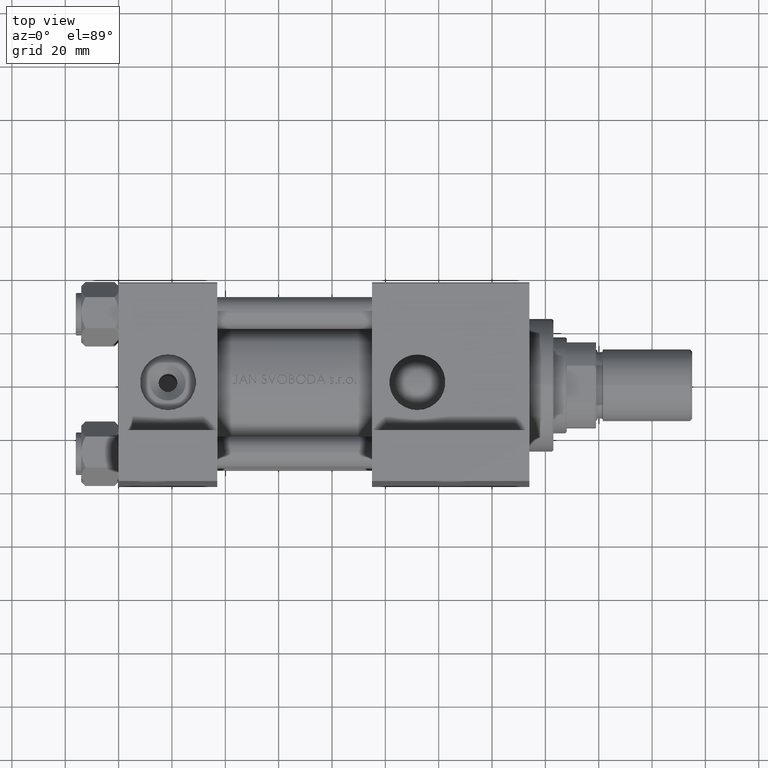
[diagram: clean part render]
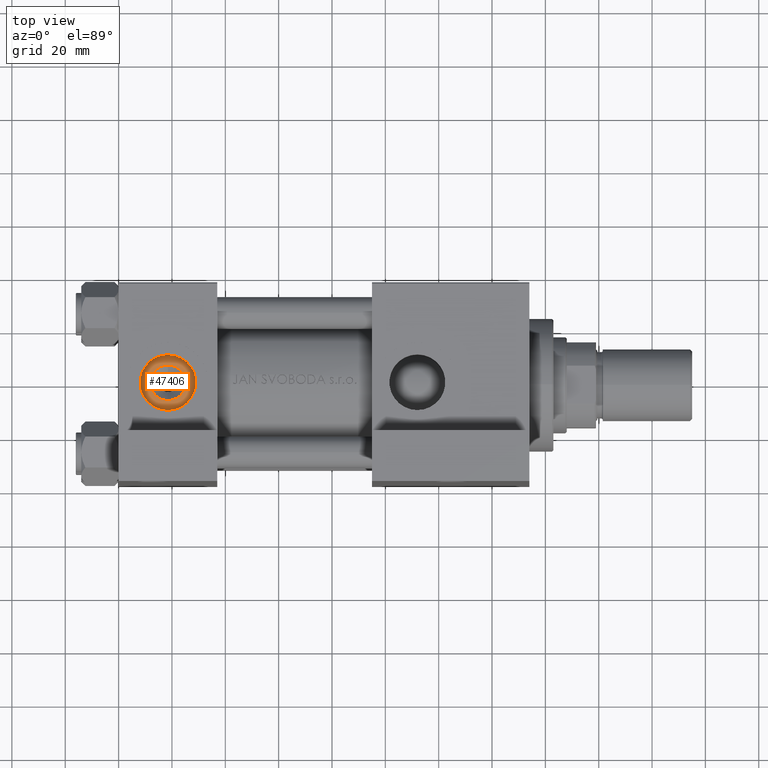
[diagram: same view with one face highlighted and labeled with its STEP entity id]
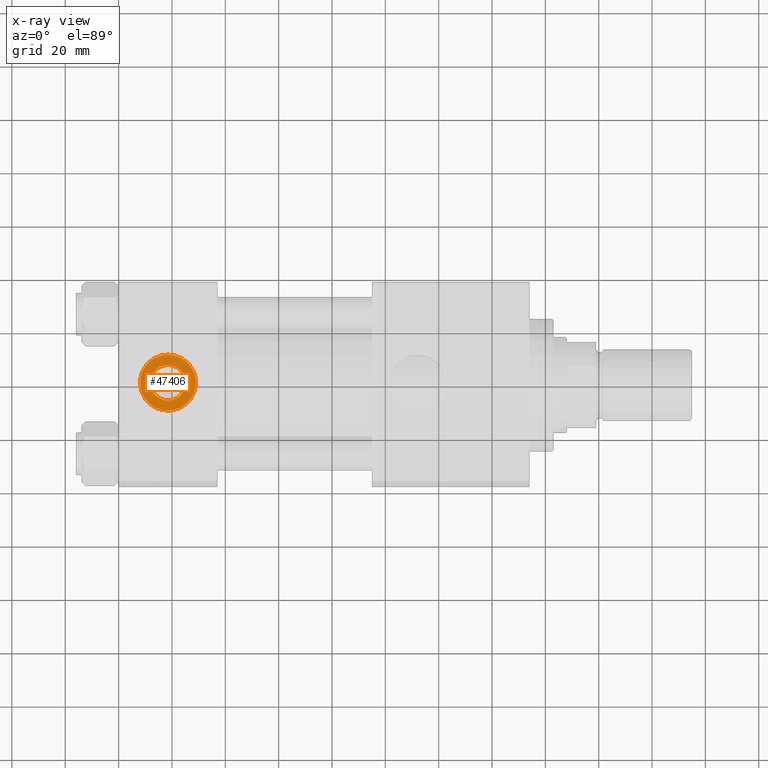
[diagram: x-ray of the same camera — body ghosted, the highlighted face saturated]
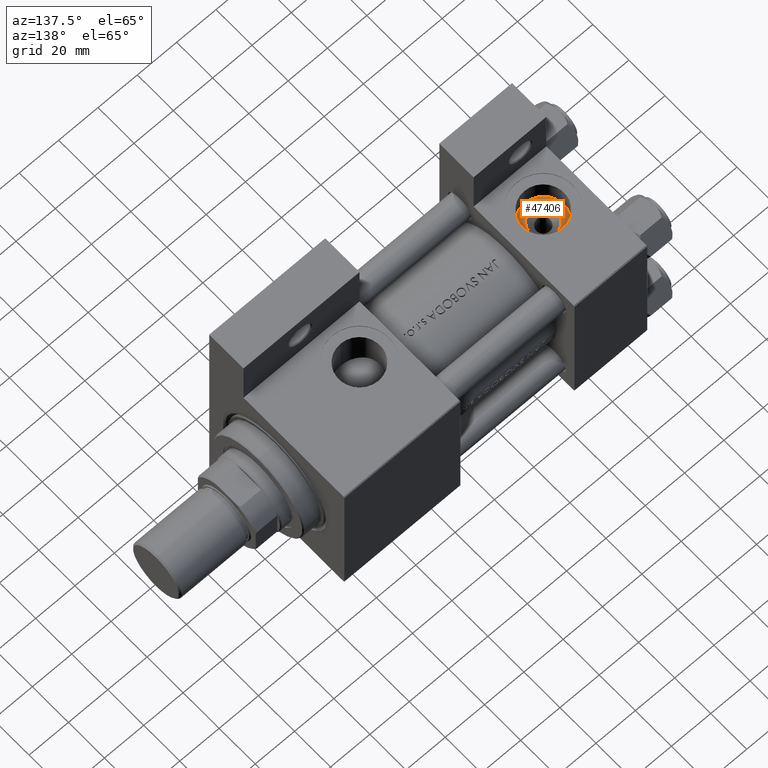
[diagram: same view with one face highlighted and labeled with its STEP entity id]
A machine part, top view. The second image highlights one B-rep face of the part: STEP entity #47406.
The next image is the same camera in x-ray: the body ghosted, the highlighted face saturated — about 0% of this face is hidden behind the body in this view.
A second angle (auxiliary view) of the same face is appended — the face is thin or edge-on in the first view.
In plain terms, the highlighted planar face has unit normal (0, -0, 1).
Its self-contained STEP definition (entity closure, byte-faithful):
#1596 = CARTESIAN_POINT ( 'NONE',  ( 18.50000000000000000, -26.60000000000000497, -2.524022657546255111E-15 ) ) ;
#3495 = DIRECTION ( 'NONE',  ( 0.000000000000000000, -1.000000000000000000, -8.673617379884036705E-17 ) ) ;
#4242 = DIRECTION ( 'NONE',  ( 0.000000000000000000, 0.000000000000000000, -1.000000000000000000 ) ) ;
#4650 = PLANE ( 'NONE',  #39854 ) ;
#5627 = DIRECTION ( 'NONE',  ( 0.000000000000000000, 0.000000000000000000, -1.000000000000000000 ) ) ;
#5759 = ORIENTED_EDGE ( 'NONE', *, *, #22801, .T. ) ;
#6421 = VERTEX_POINT ( 'NONE', #19376 ) ;
#9203 = CARTESIAN_POINT ( 'NONE',  ( 18.50000000000000000, -26.60000000000000497, 10.47999999999999865 ) ) ;
#9504 = VERTEX_POINT ( 'NONE', #11592 ) ;
#10597 = EDGE_LOOP ( 'NONE', ( #25895, #5759 ) ) ;
#10755 = CARTESIAN_POINT ( 'NONE',  ( 18.50000000000000000, -26.60000000000000497, 0.000000000000000000 ) ) ;
#11537 = CIRCLE ( 'NONE', #43896, 6.640000000000062741 ) ;
#11592 = CARTESIAN_POINT ( 'NONE',  ( 18.50000000000000000, -26.60000000000000497, -6.640000000000061853 ) ) ;
#12263 = AXIS2_PLACEMENT_3D ( 'NONE', #41260, #24827, #5627 ) ;
#16750 = CARTESIAN_POINT ( 'NONE',  ( 18.50000000000000000, -26.60000000000000497, 0.000000000000000000 ) ) ;
#16998 = DIRECTION ( 'NONE',  ( 0.000000000000000000, 8.673617379884036705E-17, -1.000000000000000000 ) ) ;
#18116 = VERTEX_POINT ( 'NONE', #9203 ) ;
#18826 = DIRECTION ( 'NONE',  ( 0.000000000000000000, 0.000000000000000000, -1.000000000000000000 ) ) ;
#19376 = CARTESIAN_POINT ( 'NONE',  ( 18.50000000000000000, -26.60000000000000497, 6.640000000000064517 ) ) ;
#20037 = DIRECTION ( 'NONE',  ( 0.000000000000000000, -1.000000000000000000, -8.673617379884036705E-17 ) ) ;
#22751 = AXIS2_PLACEMENT_3D ( 'NONE', #23186, #3495, #4242 ) ;
#22757 = CIRCLE ( 'NONE', #12263, 10.48000000000000043 ) ;
#22801 = EDGE_CURVE ( 'NONE', #6421, #9504, #36523, .T. ) ;
#23186 = CARTESIAN_POINT ( 'NONE',  ( 18.50000000000000000, -26.60000000000000497, -2.524022657546255111E-15 ) ) ;
#23376 = EDGE_CURVE ( 'NONE', #18116, #26176, #44611, .T. ) ;
#24827 = DIRECTION ( 'NONE',  ( 0.000000000000000000, -1.000000000000000000, -8.673617379884036705E-17 ) ) ;
#25895 = ORIENTED_EDGE ( 'NONE', *, *, #47298, .T. ) ;
#26176 = VERTEX_POINT ( 'NONE', #33165 ) ;
#30461 = DIRECTION ( 'NONE',  ( -0.000000000000000000, 1.000000000000000000, 8.673617379884036705E-17 ) ) ;
#31424 = DIRECTION ( 'NONE',  ( -0.000000000000000000, 1.000000000000000000, 8.673617379884036705E-17 ) ) ;
#33165 = CARTESIAN_POINT ( 'NONE',  ( 18.50000000000000000, -26.60000000000000497, -10.48000000000000220 ) ) ;
#35253 = FACE_OUTER_BOUND ( 'NONE', #39284, .T. ) ;
#36256 = FACE_BOUND ( 'NONE', #10597, .T. ) ;
#36523 = CIRCLE ( 'NONE', #37348, 6.640000000000062741 ) ;
#37348 = AXIS2_PLACEMENT_3D ( 'NONE', #10755, #30461, #18826 ) ;
#37915 = ORIENTED_EDGE ( 'NONE', *, *, #44859, .T. ) ;
#39284 = EDGE_LOOP ( 'NONE', ( #37915, #40249 ) ) ;
#39854 = AXIS2_PLACEMENT_3D ( 'NONE', #1596, #20037, #16998 ) ;
#40249 = ORIENTED_EDGE ( 'NONE', *, *, #23376, .T. ) ;
#41260 = CARTESIAN_POINT ( 'NONE',  ( 18.50000000000000000, -26.60000000000000497, -2.524022657546255111E-15 ) ) ;
#43896 = AXIS2_PLACEMENT_3D ( 'NONE', #16750, #31424, #47648 ) ;
#44611 = CIRCLE ( 'NONE', #22751, 10.48000000000000043 ) ;
#44859 = EDGE_CURVE ( 'NONE', #26176, #18116, #22757, .T. ) ;
#47298 = EDGE_CURVE ( 'NONE', #9504, #6421, #11537, .T. ) ;
#47406 = ADVANCED_FACE ( 'NONE', ( #36256, #35253 ), #4650, .T. ) ;
#47648 = DIRECTION ( 'NONE',  ( 0.000000000000000000, 0.000000000000000000, -1.000000000000000000 ) ) ;